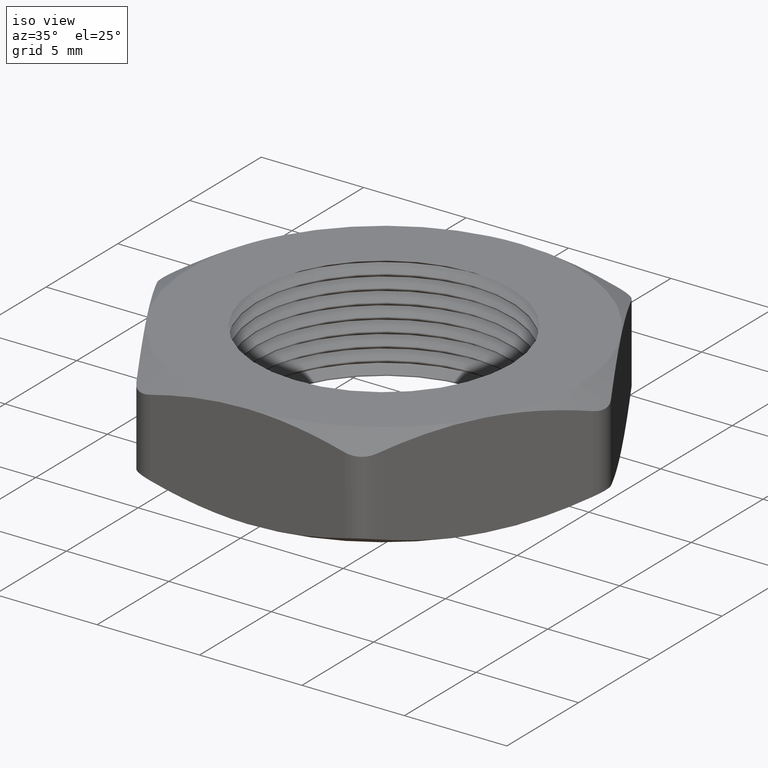
[diagram: clean part render]
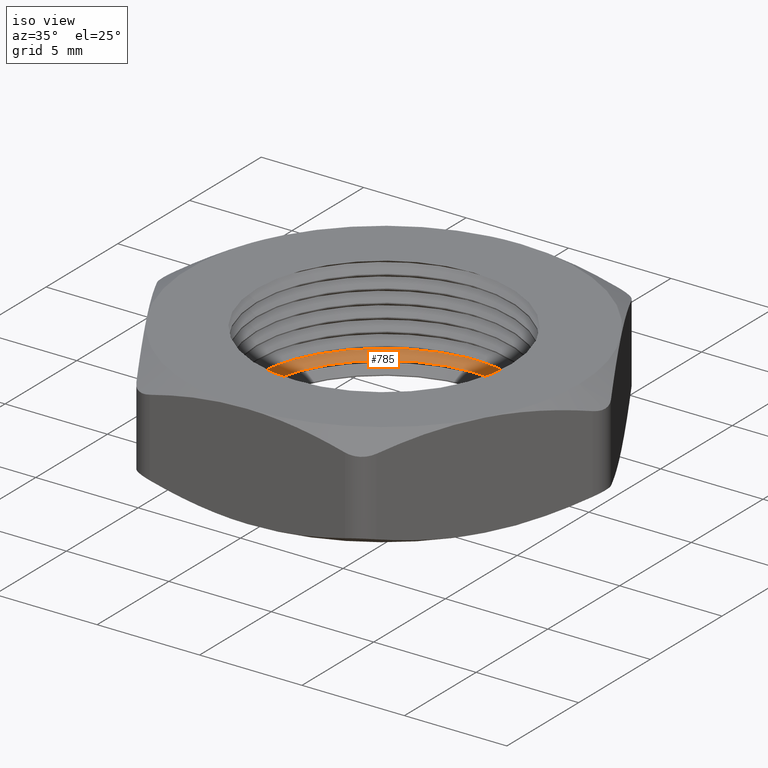
[diagram: same view with one face highlighted and labeled with its STEP entity id]
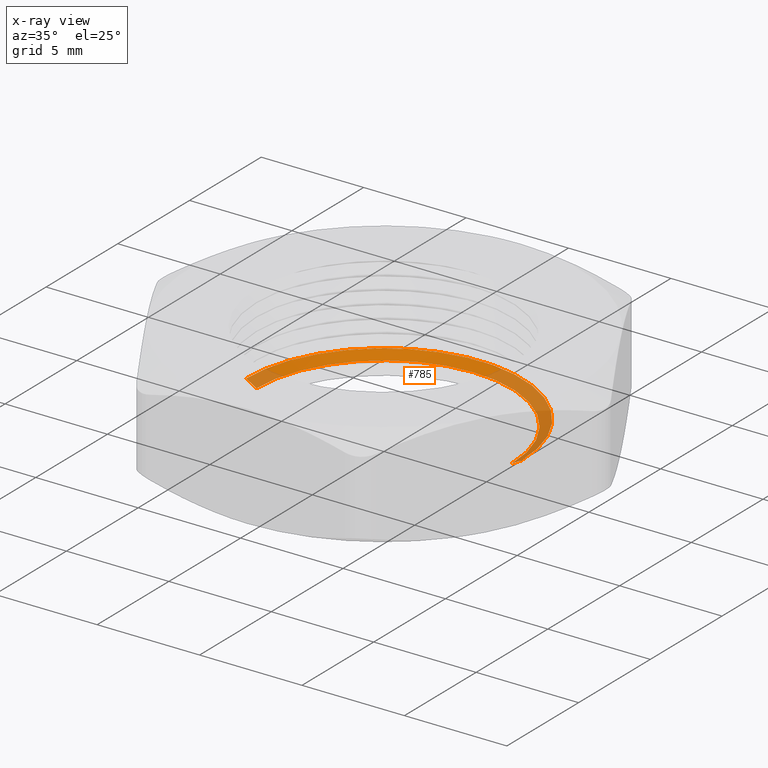
[diagram: x-ray of the same camera — body ghosted, the highlighted face saturated]
A machine part, iso view. The second image highlights one B-rep face of the part: STEP entity #785.
The next image is the same camera in x-ray: the body ghosted, the highlighted face saturated — about 39% of this face is hidden behind the body in this view.
In plain terms, the highlighted conical surface has half-angle 60 deg.
Its self-contained STEP definition (entity closure, byte-faithful):
#24 = EDGE_CURVE ( 'NONE', #211, #25, #898, .T. ) ;
#25 = VERTEX_POINT ( 'NONE', #899 ) ;
#28 = VERTEX_POINT ( 'NONE', #803 ) ;
#30 = EDGE_CURVE ( 'NONE', #212, #28, #802, .T. ) ;
#211 = VERTEX_POINT ( 'NONE', #1234 ) ;
#212 = VERTEX_POINT ( 'NONE', #1233 ) ;
#483 = EDGE_CURVE ( 'NONE', #212, #211, #1942, .T. ) ;
#651 = ORIENTED_EDGE ( 'NONE', *, *, #483, .F. ) ;
#766 = ORIENTED_EDGE ( 'NONE', *, *, #784, .T. ) ;
#768 = ORIENTED_EDGE ( 'NONE', *, *, #30, .T. ) ;
#784 = EDGE_CURVE ( 'NONE', #28, #25, #2189, .T. ) ;
#785 = ADVANCED_FACE ( 'NONE', ( #2180 ), #2179, .F. ) ;
#786 = EDGE_LOOP ( 'NONE', ( #787, #651, #768, #766 ) ) ;
#787 = ORIENTED_EDGE ( 'NONE', *, *, #24, .F. ) ;
#799 = DIRECTION ( 'NONE',  ( 0.8660254037844359300, 0.0000000000000000000, 0.5000000000000046600 ) ) ;
#800 = VECTOR ( 'NONE', #799, 39.37007874015748100 ) ;
#801 = CARTESIAN_POINT ( 'NONE',  ( 0.2450000000000000000, 0.0000000000000000000, 0.02690598923241514400 ) ) ;
#802 = LINE ( 'NONE', #801, #800 ) ;
#803 = CARTESIAN_POINT ( 'NONE',  ( 0.2649999999999999600, 3.245314017740485600E-017, 0.03845299461620780400 ) ) ;
#866 = VECTOR ( 'NONE', #896, 39.37007874015748100 ) ;
#896 = DIRECTION ( 'NONE',  ( -0.8660254037844359300, 1.060575238724903700E-016, 0.5000000000000046600 ) ) ;
#897 = CARTESIAN_POINT ( 'NONE',  ( -0.2450000000000000000, 3.000384657911014900E-017, 0.02690598923241514400 ) ) ;
#898 = LINE ( 'NONE', #897, #866 ) ;
#899 = CARTESIAN_POINT ( 'NONE',  ( -0.2649999999999999600, 0.0000000000000000000, 0.03845299461620780400 ) ) ;
#1233 = CARTESIAN_POINT ( 'NONE',  ( 0.2450000000000000000, 3.000384657911014900E-017, 0.02690598923241514400 ) ) ;
#1234 = CARTESIAN_POINT ( 'NONE',  ( -0.2450000000000000000, 0.0000000000000000000, 0.02690598923241514400 ) ) ;
#1938 = DIRECTION ( 'NONE',  ( 1.000000000000000000, 0.0000000000000000000, 0.0000000000000000000 ) ) ;
#1939 = DIRECTION ( 'NONE',  ( 0.0000000000000000000, 0.0000000000000000000, 1.000000000000000000 ) ) ;
#1940 = CARTESIAN_POINT ( 'NONE',  ( 0.0000000000000000000, 0.0000000000000000000, 0.02690598923241514400 ) ) ;
#1941 = AXIS2_PLACEMENT_3D ( 'NONE', #1940, #1939, #1938 ) ;
#1942 = CIRCLE ( 'NONE', #1941, 0.2450000000000000000 ) ;
#2175 = DIRECTION ( 'NONE',  ( 1.000000000000000000, 0.0000000000000000000, 0.0000000000000000000 ) ) ;
#2176 = DIRECTION ( 'NONE',  ( 0.0000000000000000000, 0.0000000000000000000, 1.000000000000000000 ) ) ;
#2177 = CARTESIAN_POINT ( 'NONE',  ( 0.0000000000000000000, 0.0000000000000000000, 0.02690598923241514400 ) ) ;
#2178 = AXIS2_PLACEMENT_3D ( 'NONE', #2177, #2176, #2175 ) ;
#2179 = CONICAL_SURFACE ( 'NONE', #2178, 0.2450000000000000000, 1.047197551196592300 ) ;
#2180 = FACE_OUTER_BOUND ( 'NONE', #786, .T. ) ;
#2181 = DIRECTION ( 'NONE',  ( 1.000000000000000000, 0.0000000000000000000, 0.0000000000000000000 ) ) ;
#2182 = DIRECTION ( 'NONE',  ( 0.0000000000000000000, 0.0000000000000000000, 1.000000000000000000 ) ) ;
#2183 = CARTESIAN_POINT ( 'NONE',  ( 0.0000000000000000000, 0.0000000000000000000, 0.03845299461620780400 ) ) ;
#2184 = AXIS2_PLACEMENT_3D ( 'NONE', #2183, #2182, #2181 ) ;
#2189 = CIRCLE ( 'NONE', #2184, 0.2649999999999999600 ) ;